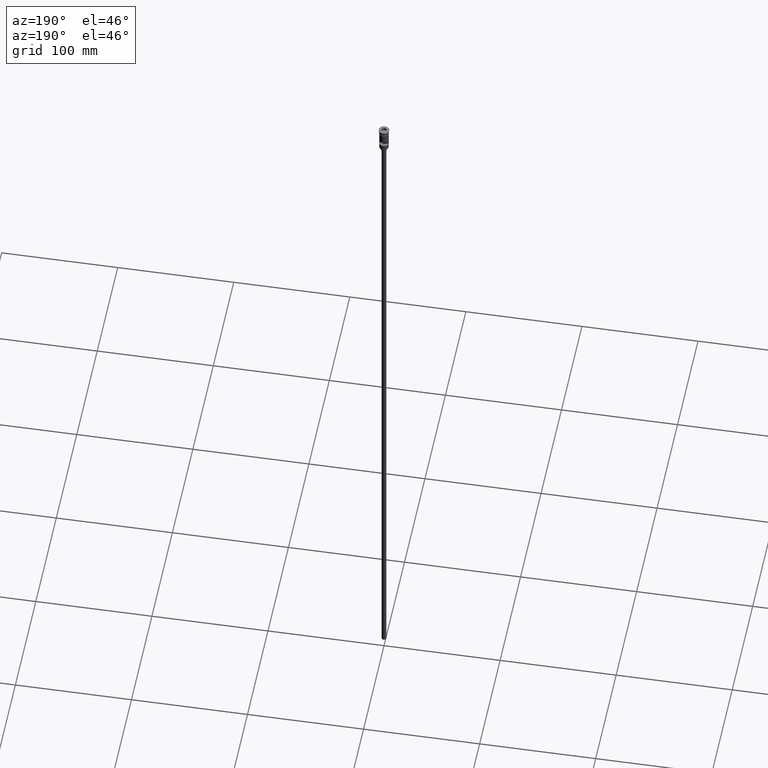
[diagram: clean part render]
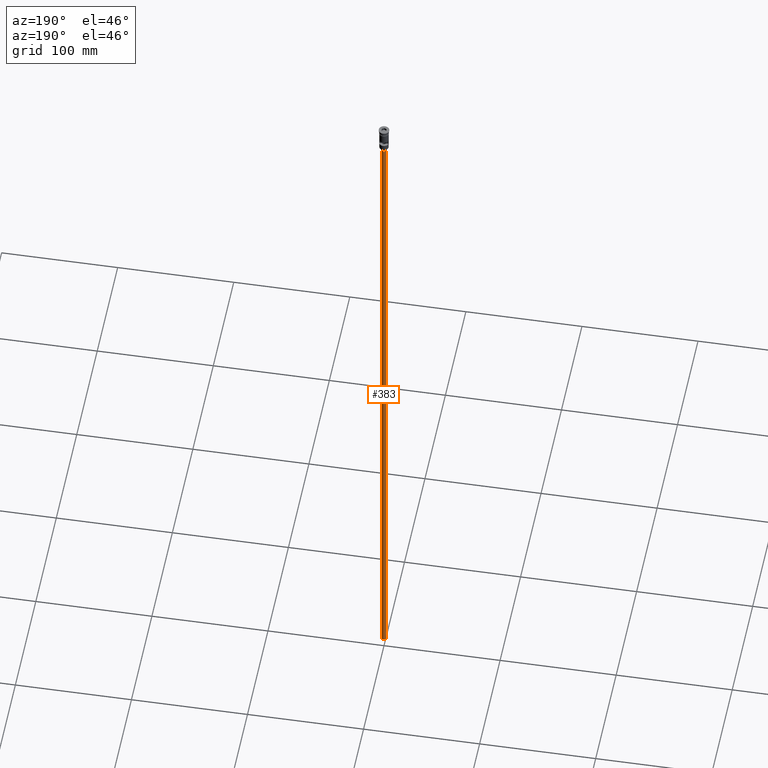
[diagram: same view with one face highlighted and labeled with its STEP entity id]
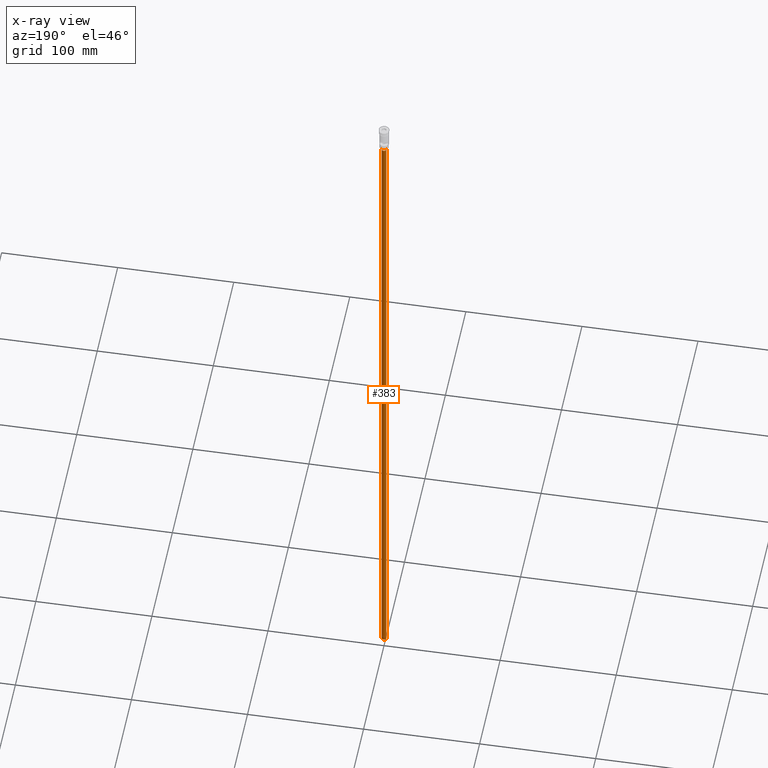
[diagram: x-ray of the same camera — body ghosted, the highlighted face saturated]
A machine part, auxiliary view. The second image highlights one B-rep face of the part: STEP entity #383.
The next image is the same camera in x-ray: the body ghosted, the highlighted face saturated — about 0% of this face is hidden behind the body in this view.
In plain terms, the highlighted cylindrical surface (edge-blend (fillet) strip) has radius 2 mm, axis along (-0, -0, 1).
Its self-contained STEP definition (entity closure, byte-faithful):
#73 = VERTEX_POINT ( 'NONE', #961 ) ;
#75 = DIRECTION ( 'NONE',  ( 0.000000000000000000, 0.000000000000000000, -1.000000000000000000 ) ) ;
#145 = ORIENTED_EDGE ( 'NONE', *, *, #1429, .T. ) ;
#207 = DIRECTION ( 'NONE',  ( 0.000000000000000000, 0.000000000000000000, -1.000000000000000000 ) ) ;
#214 = CIRCLE ( 'NONE', #424, 2.000000000000000000 ) ;
#371 = VECTOR ( 'NONE', #596, 1000.000000000000000 ) ;
#373 = ORIENTED_EDGE ( 'NONE', *, *, #1574, .T. ) ;
#383 = ADVANCED_FACE ( 'NONE', ( #1457 ), #1082, .T. ) ;
#387 = ORIENTED_EDGE ( 'NONE', *, *, #1506, .F. ) ;
#396 = CARTESIAN_POINT ( 'NONE',  ( 2.000000000000000000, 0.000000000000000000, -23.49999999999999645 ) ) ;
#424 = AXIS2_PLACEMENT_3D ( 'NONE', #1321, #207, #704 ) ;
#488 = EDGE_CURVE ( 'NONE', #1513, #73, #214, .T. ) ;
#523 = EDGE_LOOP ( 'NONE', ( #1601, #373, #145, #387 ) ) ;
#581 = DIRECTION ( 'NONE',  ( 1.000000000000000000, 0.000000000000000000, 0.000000000000000000 ) ) ;
#596 = DIRECTION ( 'NONE',  ( -0.000000000000000000, -0.000000000000000000, 1.000000000000000000 ) ) ;
#631 = CIRCLE ( 'NONE', #893, 2.000000000000000000 ) ;
#687 = VECTOR ( 'NONE', #1405, 1000.000000000000000 ) ;
#692 = CARTESIAN_POINT ( 'NONE',  ( -2.000000000000000000, 2.449293598294706414E-16, -23.49999999999999645 ) ) ;
#704 = DIRECTION ( 'NONE',  ( -1.000000000000000000, 0.000000000000000000, 0.000000000000000000 ) ) ;
#793 = CARTESIAN_POINT ( 'NONE',  ( 0.000000000000000000, 0.000000000000000000, -23.49999999999999645 ) ) ;
#846 = CARTESIAN_POINT ( 'NONE',  ( 0.000000000000000000, 0.000000000000000000, -620.4999999999998863 ) ) ;
#893 = AXIS2_PLACEMENT_3D ( 'NONE', #793, #75, #1520 ) ;
#909 = LINE ( 'NONE', #1041, #687 ) ;
#961 = CARTESIAN_POINT ( 'NONE',  ( 2.000000000000000000, 0.000000000000000000, -620.4999999999998863 ) ) ;
#1041 = CARTESIAN_POINT ( 'NONE',  ( 2.000000000000000000, 0.000000000000000000, -620.4999999999998863 ) ) ;
#1061 = CARTESIAN_POINT ( 'NONE',  ( -2.000000000000000000, 2.449293598294706414E-16, -620.4999999999998863 ) ) ;
#1082 = CYLINDRICAL_SURFACE ( 'NONE', #1353, 2.000000000000000000 ) ;
#1085 = LINE ( 'NONE', #1197, #371 ) ;
#1189 = DIRECTION ( 'NONE',  ( -0.000000000000000000, -0.000000000000000000, 1.000000000000000000 ) ) ;
#1197 = CARTESIAN_POINT ( 'NONE',  ( -2.000000000000000000, 2.449293598294706414E-16, -620.4999999999998863 ) ) ;
#1321 = CARTESIAN_POINT ( 'NONE',  ( 0.000000000000000000, 0.000000000000000000, -620.4999999999998863 ) ) ;
#1353 = AXIS2_PLACEMENT_3D ( 'NONE', #846, #1189, #581 ) ;
#1363 = VERTEX_POINT ( 'NONE', #396 ) ;
#1405 = DIRECTION ( 'NONE',  ( -0.000000000000000000, -0.000000000000000000, 1.000000000000000000 ) ) ;
#1429 = EDGE_CURVE ( 'NONE', #1504, #1363, #631, .T. ) ;
#1457 = FACE_OUTER_BOUND ( 'NONE', #523, .T. ) ;
#1504 = VERTEX_POINT ( 'NONE', #692 ) ;
#1506 = EDGE_CURVE ( 'NONE', #73, #1363, #909, .T. ) ;
#1513 = VERTEX_POINT ( 'NONE', #1061 ) ;
#1520 = DIRECTION ( 'NONE',  ( -1.000000000000000000, 0.000000000000000000, 0.000000000000000000 ) ) ;
#1574 = EDGE_CURVE ( 'NONE', #1513, #1504, #1085, .T. ) ;
#1601 = ORIENTED_EDGE ( 'NONE', *, *, #488, .F. ) ;